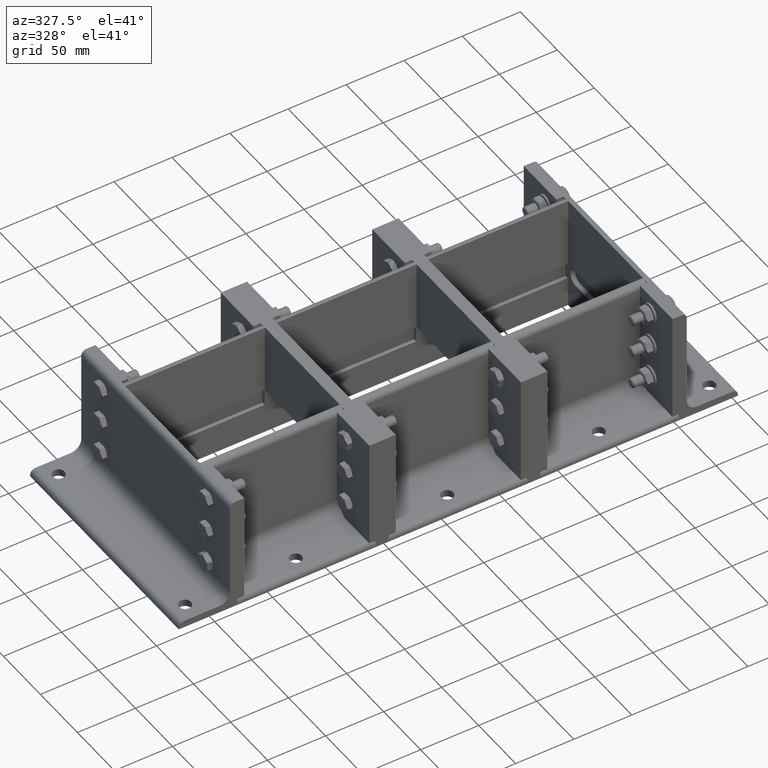
[diagram: clean part render]
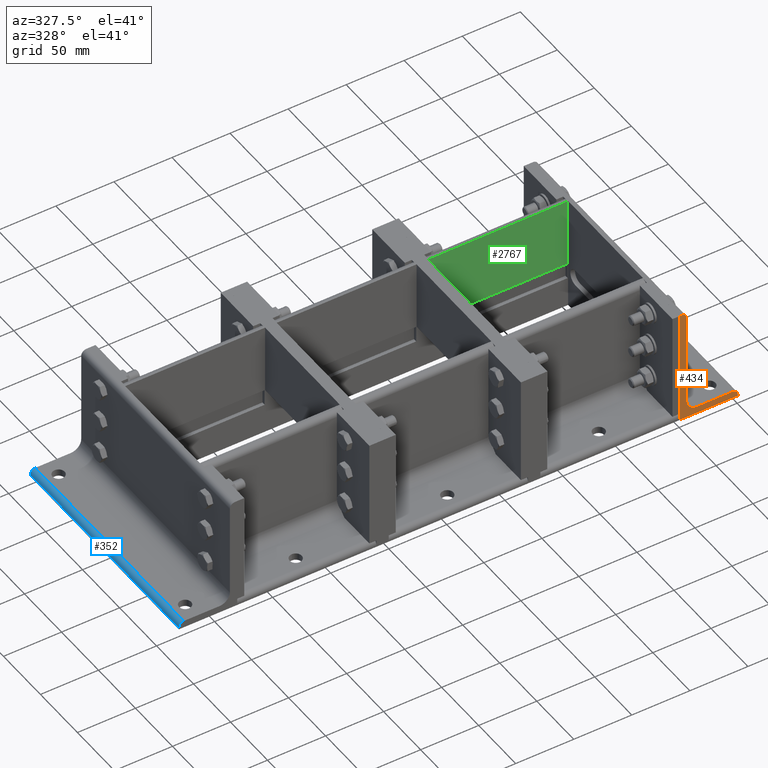
[diagram: same view with three faces highlighted in distinct colors, each labeled with its STEP entity id]
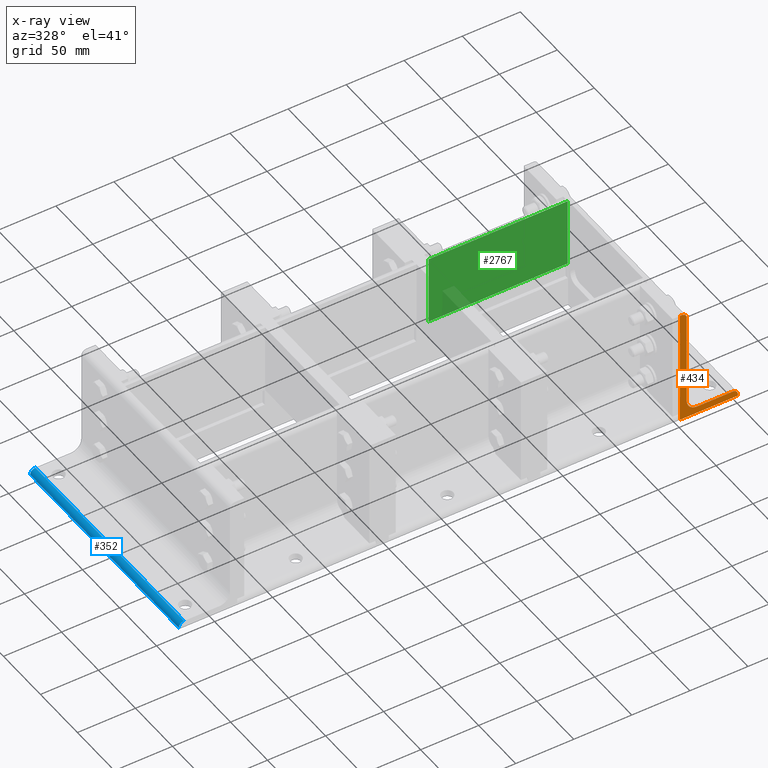
[diagram: x-ray of the same camera — body ghosted, the three highlighted faces saturated]
A machine part, auxiliary view with three faces highlighted in distinct colors.
The next image is the same camera in x-ray (body ghosted, the three faces saturated) — at least one of them is partly hidden behind the body in this view.
Their STEP definitions:

[orange] entity #434 — the highlighted planar face has unit normal (0, 1, -0).
#246=CARTESIAN_POINT('',(5.999999999999998,0.0,15.000000000000002));
#247=VERTEX_POINT('',#246);
#248=CARTESIAN_POINT('',(15.0,0.0,6.000000000000001));
#249=VERTEX_POINT('',#248);
#250=CARTESIAN_POINT('',(15.0,0.0,15.0));
#251=DIRECTION('',(0.0,-1.0,0.0));
#252=DIRECTION('',(-0.707106781186548,0.0,-0.707106781186547));
#253=AXIS2_PLACEMENT_3D('',#250,#251,#252);
#254=CIRCLE('',#253,9.0);
#255=EDGE_CURVE('',#247,#249,#254,.T.);
#289=CARTESIAN_POINT('',(45.499999999999986,0.0,5.999999999999991));
#290=VERTEX_POINT('',#289);
#291=CARTESIAN_POINT('',(45.499999999999993,0.0,5.999999999999991));
#292=DIRECTION('',(-1.0,0.0,0.0));
#293=VECTOR('',#292,30.499999999999993);
#294=LINE('',#291,#293);
#295=EDGE_CURVE('',#290,#249,#294,.T.);
#335=CARTESIAN_POINT('',(49.999999999999993,0.0,1.499999999999991));
#336=VERTEX_POINT('',#335);
#337=CARTESIAN_POINT('',(45.499999999999986,0.0,1.499999999999991));
#338=DIRECTION('',(0.0,1.0,0.0));
#339=DIRECTION('',(0.707106781186547,0.0,0.707106781186548));
#340=AXIS2_PLACEMENT_3D('',#337,#338,#339);
#341=CIRCLE('',#340,4.5);
#342=EDGE_CURVE('',#290,#336,#341,.T.);
#359=CARTESIAN_POINT('',(49.999999999999993,0.0,-9.228729E-015));
#360=VERTEX_POINT('',#359);
#361=CARTESIAN_POINT('',(49.999999999999993,0.0,-9.228729E-015));
#362=DIRECTION('',(0.0,0.0,1.0));
#363=VECTOR('',#362,1.5);
#364=LINE('',#361,#363);
#365=EDGE_CURVE('',#360,#336,#364,.T.);
#384=CARTESIAN_POINT('',(11.213333333333331,0.0,36.213333333333331));
#385=DIRECTION('',(0.0,1.0,0.0));
#386=DIRECTION('',(0.0,0.0,1.0));
#387=AXIS2_PLACEMENT_3D('',#384,#385,#386);
#388=PLANE('',#387);
#389=ORIENTED_EDGE('',*,*,#342,.F.);
#390=ORIENTED_EDGE('',*,*,#295,.T.);
#391=ORIENTED_EDGE('',*,*,#255,.F.);
#392=CARTESIAN_POINT('',(6.000000000000022,0.0,95.5));
#393=VERTEX_POINT('',#392);
#394=CARTESIAN_POINT('',(5.999999999999999,0.0,15.000000000000004));
#395=DIRECTION('',(0.0,0.0,1.0));
#396=VECTOR('',#395,80.500000000000014);
#397=LINE('',#394,#396);
#398=EDGE_CURVE('',#247,#393,#397,.T.);
#399=ORIENTED_EDGE('',*,*,#398,.T.);
#400=CARTESIAN_POINT('',(1.500000000000022,0.0,100.0));
#401=VERTEX_POINT('',#400);
#402=CARTESIAN_POINT('',(1.500000000000022,0.0,95.5));
#403=DIRECTION('',(0.0,1.0,0.0));
#404=DIRECTION('',(0.707106781186548,0.0,0.707106781186547));
#405=AXIS2_PLACEMENT_3D('',#402,#403,#404);
#406=CIRCLE('',#405,4.5);
#407=EDGE_CURVE('',#401,#393,#406,.T.);
#408=ORIENTED_EDGE('',*,*,#407,.F.);
#409=CARTESIAN_POINT('',(1.221245E-014,0.0,100.0));
#410=VERTEX_POINT('',#409);
#411=CARTESIAN_POINT('',(1.500000000000022,0.0,100.0));
#412=DIRECTION('',(-1.0,0.0,0.0));
#413=VECTOR('',#412,1.50000000000001);
#414=LINE('',#411,#413);
#415=EDGE_CURVE('',#401,#410,#414,.T.);
#416=ORIENTED_EDGE('',*,*,#415,.T.);
#417=CARTESIAN_POINT('',(0.0,0.0,0.0));
#418=VERTEX_POINT('',#417);
#419=CARTESIAN_POINT('',(1.221245E-014,0.0,100.0));
#420=DIRECTION('',(0.0,0.0,-1.0));
#421=VECTOR('',#420,100.0);
#422=LINE('',#419,#421);
#423=EDGE_CURVE('',#410,#418,#422,.T.);
#424=ORIENTED_EDGE('',*,*,#423,.T.);
#425=CARTESIAN_POINT('',(0.0,0.0,0.0));
#426=DIRECTION('',(1.0,0.0,0.0));
#427=VECTOR('',#426,49.999999999999993);
#428=LINE('',#425,#427);
#429=EDGE_CURVE('',#418,#360,#428,.T.);
#430=ORIENTED_EDGE('',*,*,#429,.T.);
#431=ORIENTED_EDGE('',*,*,#365,.T.);
#432=EDGE_LOOP('',(#389,#390,#391,#399,#408,#416,#424,#430,#431));
#433=FACE_OUTER_BOUND('',#432,.T.);
#434=ADVANCED_FACE('',(#433),#388,.F.);

[blue] entity #352 — the highlighted cylindrical surface (edge-blend (fillet) strip) has radius 4.5 mm, axis along (-0, -1, -0).
#289=CARTESIAN_POINT('',(45.499999999999986,0.0,5.999999999999991));
#290=VERTEX_POINT('',#289);
#297=CARTESIAN_POINT('',(45.499999999999986,201.0,5.999999999999991));
#298=VERTEX_POINT('',#297);
#299=CARTESIAN_POINT('',(45.499999999999986,201.0,5.999999999999991));
#300=DIRECTION('',(0.0,-1.0,0.0));
#301=VECTOR('',#300,201.0);
#302=LINE('',#299,#301);
#303=EDGE_CURVE('',#298,#290,#302,.T.);
#320=CARTESIAN_POINT('',(45.499999999999986,0.0,1.499999999999991));
#321=DIRECTION('',(0.0,1.0,0.0));
#322=DIRECTION('',(0.707106781186547,0.0,0.707106781186548));
#323=AXIS2_PLACEMENT_3D('',#320,#321,#322);
#324=CYLINDRICAL_SURFACE('',#323,4.5);
#325=CARTESIAN_POINT('',(49.999999999999993,201.0,1.499999999999991));
#326=VERTEX_POINT('',#325);
#327=CARTESIAN_POINT('',(45.499999999999986,201.0,1.499999999999991));
#328=DIRECTION('',(0.0,-1.0,0.0));
#329=DIRECTION('',(0.707106781186547,0.0,0.707106781186548));
#330=AXIS2_PLACEMENT_3D('',#327,#328,#329);
#331=CIRCLE('',#330,4.5);
#332=EDGE_CURVE('',#326,#298,#331,.T.);
#333=ORIENTED_EDGE('',*,*,#332,.T.);
#334=ORIENTED_EDGE('',*,*,#303,.T.);
#335=CARTESIAN_POINT('',(49.999999999999993,0.0,1.499999999999991));
#336=VERTEX_POINT('',#335);
#337=CARTESIAN_POINT('',(45.499999999999986,0.0,1.499999999999991));
#338=DIRECTION('',(0.0,1.0,0.0));
#339=DIRECTION('',(0.707106781186547,0.0,0.707106781186548));
#340=AXIS2_PLACEMENT_3D('',#337,#338,#339);
#341=CIRCLE('',#340,4.5);
#342=EDGE_CURVE('',#290,#336,#341,.T.);
#343=ORIENTED_EDGE('',*,*,#342,.T.);
#344=CARTESIAN_POINT('',(49.999999999999993,0.0,1.499999999999991));
#345=DIRECTION('',(0.0,1.0,0.0));
#346=VECTOR('',#345,201.0);
#347=LINE('',#344,#346);
#348=EDGE_CURVE('',#336,#326,#347,.T.);
#349=ORIENTED_EDGE('',*,*,#348,.T.);
#350=EDGE_LOOP('',(#333,#334,#343,#349));
#351=FACE_OUTER_BOUND('',#350,.T.);
#352=ADVANCED_FACE('',(#351),#324,.T.);

[green] entity #2767 — the highlighted planar face has unit normal (0, -1, -0).
#2595=CARTESIAN_POINT('',(-5.999999999999992,0.0,34.000000000000014));
#2596=VERTEX_POINT('',#2595);
#2605=CARTESIAN_POINT('',(-5.999999999999992,119.80000000000001,34.000000000000014));
#2606=VERTEX_POINT('',#2605);
#2607=CARTESIAN_POINT('',(-5.999999999999992,119.80000000000001,34.000000000000021));
#2608=DIRECTION('',(0.0,-1.0,0.0));
#2609=VECTOR('',#2608,119.80000000000001);
#2610=LINE('',#2607,#2609);
#2611=EDGE_CURVE('',#2606,#2596,#2610,.T.);
#2660=CARTESIAN_POINT('',(-5.999999999999984,119.80000000000001,93.999999999999986));
#2661=VERTEX_POINT('',#2660);
#2662=CARTESIAN_POINT('',(-5.999999999999991,119.80000000000001,34.000000000000021));
#2663=DIRECTION('',(0.0,0.0,1.0));
#2664=VECTOR('',#2663,59.999999999999964);
#2665=LINE('',#2662,#2664);
#2666=EDGE_CURVE('',#2606,#2661,#2665,.T.);
#2744=CARTESIAN_POINT('',(-5.999999999999996,0.0,-5.999999999999996));
#2745=DIRECTION('',(-1.0,0.0,0.0));
#2746=DIRECTION('',(0.0,0.0,1.0));
#2747=AXIS2_PLACEMENT_3D('',#2744,#2745,#2746);
#2748=PLANE('',#2747);
#2749=ORIENTED_EDGE('',*,*,#2611,.T.);
#2750=CARTESIAN_POINT('',(-5.999999999999984,0.0,93.999999999999986));
#2751=VERTEX_POINT('',#2750);
#2752=CARTESIAN_POINT('',(-5.999999999999984,0.0,93.999999999999986));
#2753=DIRECTION('',(0.0,0.0,-1.0));
#2754=VECTOR('',#2753,59.999999999999964);
#2755=LINE('',#2752,#2754);
#2756=EDGE_CURVE('',#2751,#2596,#2755,.T.);
#2757=ORIENTED_EDGE('',*,*,#2756,.F.);
#2758=CARTESIAN_POINT('',(-5.999999999999984,0.0,93.999999999999986));
#2759=DIRECTION('',(0.0,1.0,0.0));
#2760=VECTOR('',#2759,119.80000000000001);
#2761=LINE('',#2758,#2760);
#2762=EDGE_CURVE('',#2751,#2661,#2761,.T.);
#2763=ORIENTED_EDGE('',*,*,#2762,.T.);
#2764=ORIENTED_EDGE('',*,*,#2666,.F.);
#2765=EDGE_LOOP('',(#2749,#2757,#2763,#2764));
#2766=FACE_OUTER_BOUND('',#2765,.T.);
#2767=ADVANCED_FACE('',(#2766),#2748,.T.);